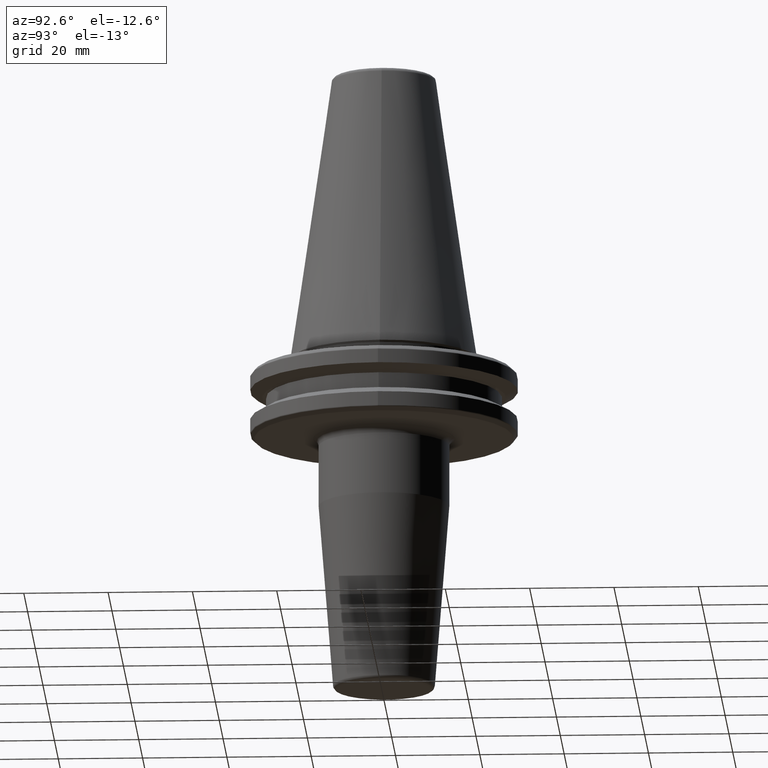
[diagram: clean part render]
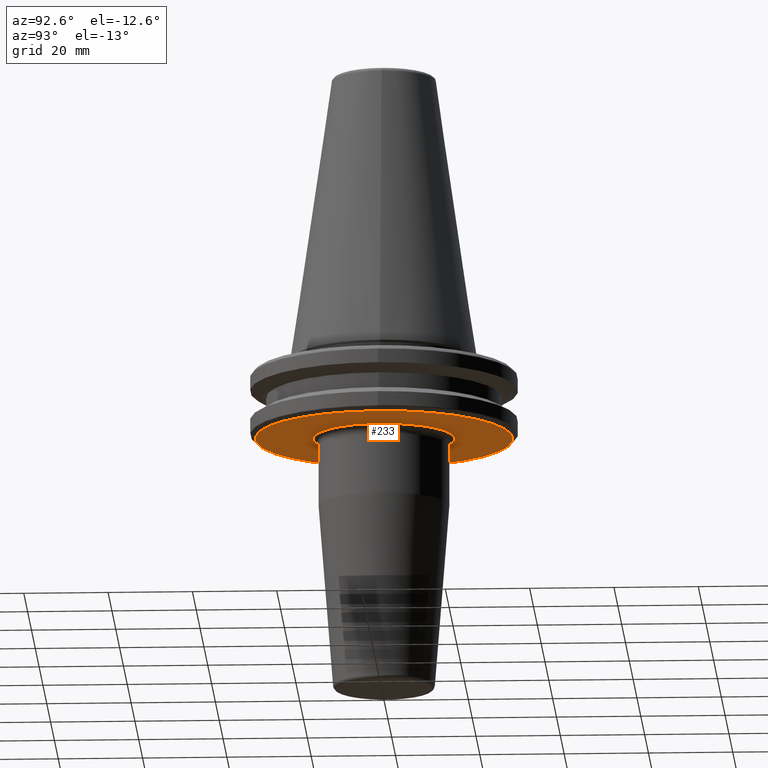
[diagram: same view with one face highlighted and labeled with its STEP entity id]
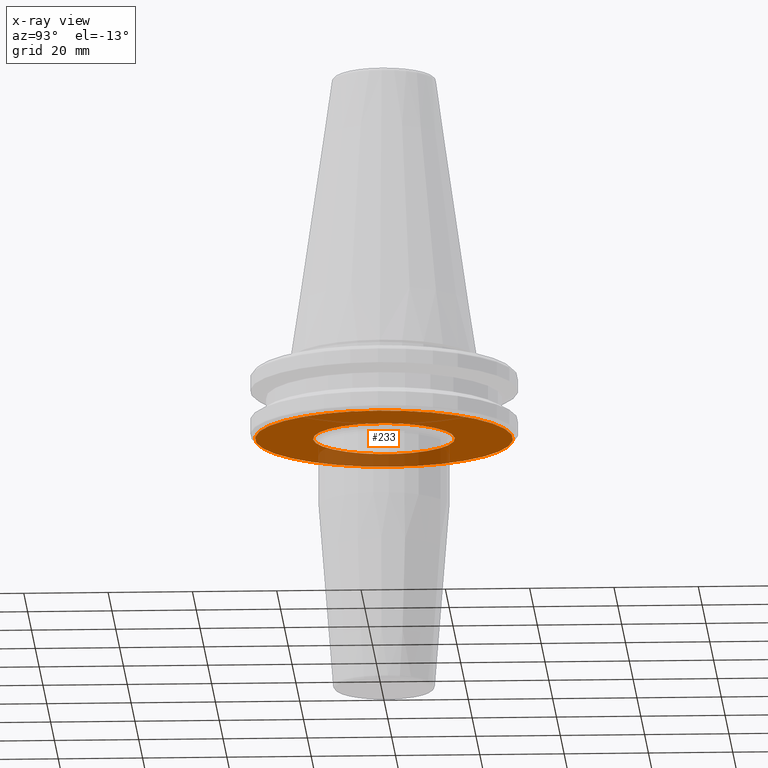
[diagram: x-ray of the same camera — body ghosted, the highlighted face saturated]
A machine part, auxiliary view. The second image highlights one B-rep face of the part: STEP entity #233.
The next image is the same camera in x-ray: the body ghosted, the highlighted face saturated — about 22% of this face is hidden behind the body in this view.
In plain terms, the highlighted planar face has unit normal (0, 0, -1).
Its self-contained STEP definition (entity closure, byte-faithful):
#62 = AXIS2_PLACEMENT_3D ( 'NONE', #414, #804, #406 ) ;
#74 = CIRCLE ( 'NONE', #1250, 30.58431457505076500 ) ;
#92 = DIRECTION ( 'NONE',  ( 1.000000000000000000, 0.0000000000000000000, 0.0000000000000000000 ) ) ;
#100 = DIRECTION ( 'NONE',  ( -0.0000000000000000000, -0.0000000000000000000, 1.000000000000000000 ) ) ;
#117 = PLANE ( 'NONE',  #62 ) ;
#167 = EDGE_CURVE ( 'NONE', #427, #1128, #402, .T. ) ;
#172 = DIRECTION ( 'NONE',  ( 1.000000000000000000, 0.0000000000000000000, 0.0000000000000000000 ) ) ;
#174 = CARTESIAN_POINT ( 'NONE',  ( 0.0000000000000000000, 0.0000000000000000000, -19.10000000000000500 ) ) ;
#233 = ADVANCED_FACE ( 'NONE', ( #1145, #611 ), #117, .T. ) ;
#344 = AXIS2_PLACEMENT_3D ( 'NONE', #362, #1243, #172 ) ;
#362 = CARTESIAN_POINT ( 'NONE',  ( 0.0000000000000000000, -1.734723475976807100E-014, -19.10000000000000500 ) ) ;
#379 = VERTEX_POINT ( 'NONE', #644 ) ;
#402 = CIRCLE ( 'NONE', #344, 16.82553478956936700 ) ;
#406 = DIRECTION ( 'NONE',  ( -1.000000000000000000, 0.0000000000000000000, -0.0000000000000000000 ) ) ;
#414 = CARTESIAN_POINT ( 'NONE',  ( 0.0000000000000000000, 2.166680460328873200E-015, -19.10000000000000500 ) ) ;
#427 = VERTEX_POINT ( 'NONE', #527 ) ;
#524 = ORIENTED_EDGE ( 'NONE', *, *, #167, .F. ) ;
#527 = CARTESIAN_POINT ( 'NONE',  ( 2.060533732398856700E-015, -16.82553478956939200, -19.10000000000000500 ) ) ;
#538 = CARTESIAN_POINT ( 'NONE',  ( 30.58431457505076500, 0.0000000000000000000, -19.10000000000000500 ) ) ;
#562 = DIRECTION ( 'NONE',  ( 0.0000000000000000000, 0.0000000000000000000, -1.000000000000000000 ) ) ;
#611 = FACE_OUTER_BOUND ( 'NONE', #801, .T. ) ;
#617 = EDGE_LOOP ( 'NONE', ( #689, #524 ) ) ;
#622 = DIRECTION ( 'NONE',  ( -0.0000000000000000000, -0.0000000000000000000, 1.000000000000000000 ) ) ;
#640 = EDGE_CURVE ( 'NONE', #1164, #379, #926, .T. ) ;
#644 = CARTESIAN_POINT ( 'NONE',  ( -30.58431457505076500, 3.762817415969875600E-015, -19.10000000000000500 ) ) ;
#667 = EDGE_CURVE ( 'NONE', #379, #1164, #74, .T. ) ;
#674 = AXIS2_PLACEMENT_3D ( 'NONE', #174, #100, #92 ) ;
#689 = ORIENTED_EDGE ( 'NONE', *, *, #1254, .F. ) ;
#713 = DIRECTION ( 'NONE',  ( 1.000000000000000000, 0.0000000000000000000, 0.0000000000000000000 ) ) ;
#760 = AXIS2_PLACEMENT_3D ( 'NONE', #1122, #562, #1219 ) ;
#801 = EDGE_LOOP ( 'NONE', ( #838, #1213 ) ) ;
#804 = DIRECTION ( 'NONE',  ( 0.0000000000000000000, 0.0000000000000000000, -1.000000000000000000 ) ) ;
#838 = ORIENTED_EDGE ( 'NONE', *, *, #640, .F. ) ;
#926 = CIRCLE ( 'NONE', #674, 30.58431457505076500 ) ;
#960 = CARTESIAN_POINT ( 'NONE',  ( 0.0000000000000000000, 16.82553478956934300, -19.10000000000000500 ) ) ;
#991 = CARTESIAN_POINT ( 'NONE',  ( 0.0000000000000000000, 0.0000000000000000000, -19.10000000000000500 ) ) ;
#1122 = CARTESIAN_POINT ( 'NONE',  ( 0.0000000000000000000, -1.734723475976807100E-014, -19.10000000000000500 ) ) ;
#1128 = VERTEX_POINT ( 'NONE', #960 ) ;
#1145 = FACE_BOUND ( 'NONE', #617, .T. ) ;
#1164 = VERTEX_POINT ( 'NONE', #538 ) ;
#1213 = ORIENTED_EDGE ( 'NONE', *, *, #667, .F. ) ;
#1219 = DIRECTION ( 'NONE',  ( 1.000000000000000000, 0.0000000000000000000, 0.0000000000000000000 ) ) ;
#1239 = CIRCLE ( 'NONE', #760, 16.82553478956936700 ) ;
#1243 = DIRECTION ( 'NONE',  ( 0.0000000000000000000, 0.0000000000000000000, -1.000000000000000000 ) ) ;
#1250 = AXIS2_PLACEMENT_3D ( 'NONE', #991, #622, #713 ) ;
#1254 = EDGE_CURVE ( 'NONE', #1128, #427, #1239, .T. ) ;